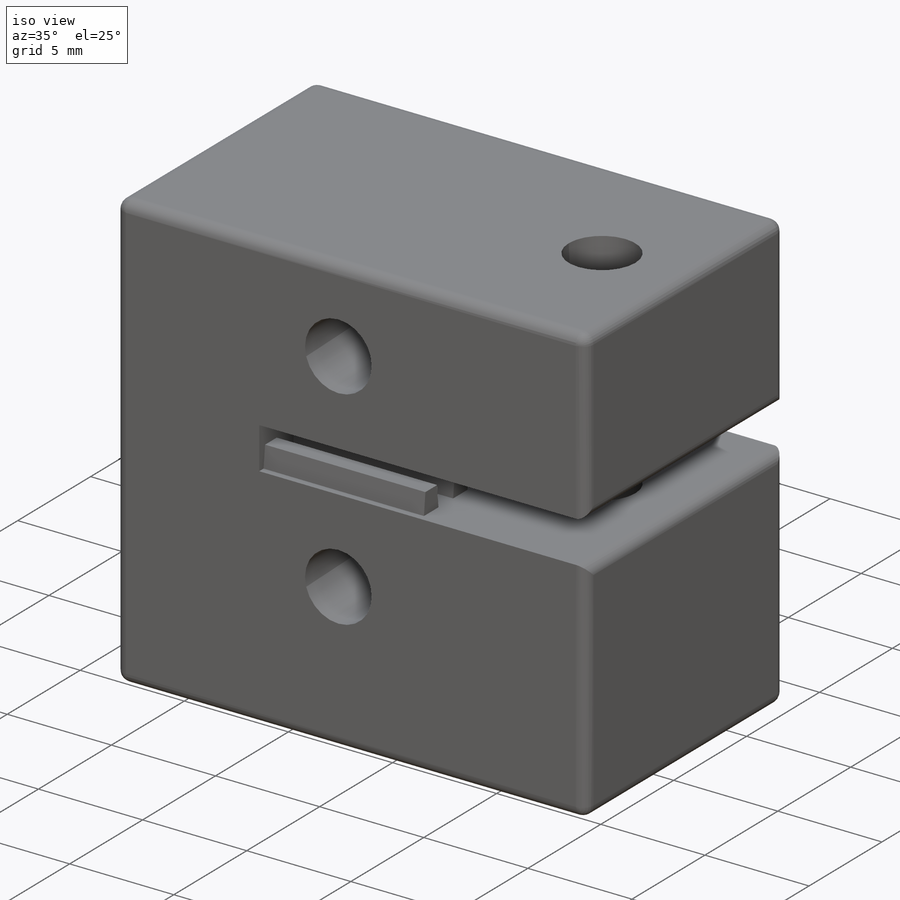
[diagram: iso view]
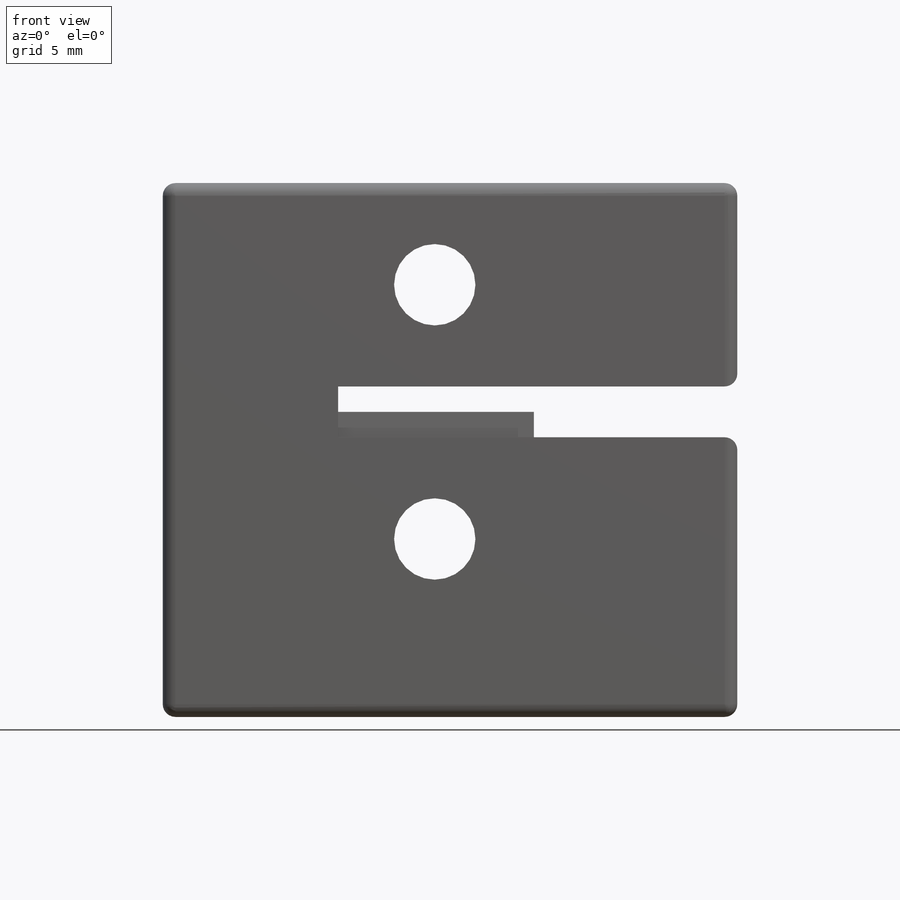
[diagram: front view]
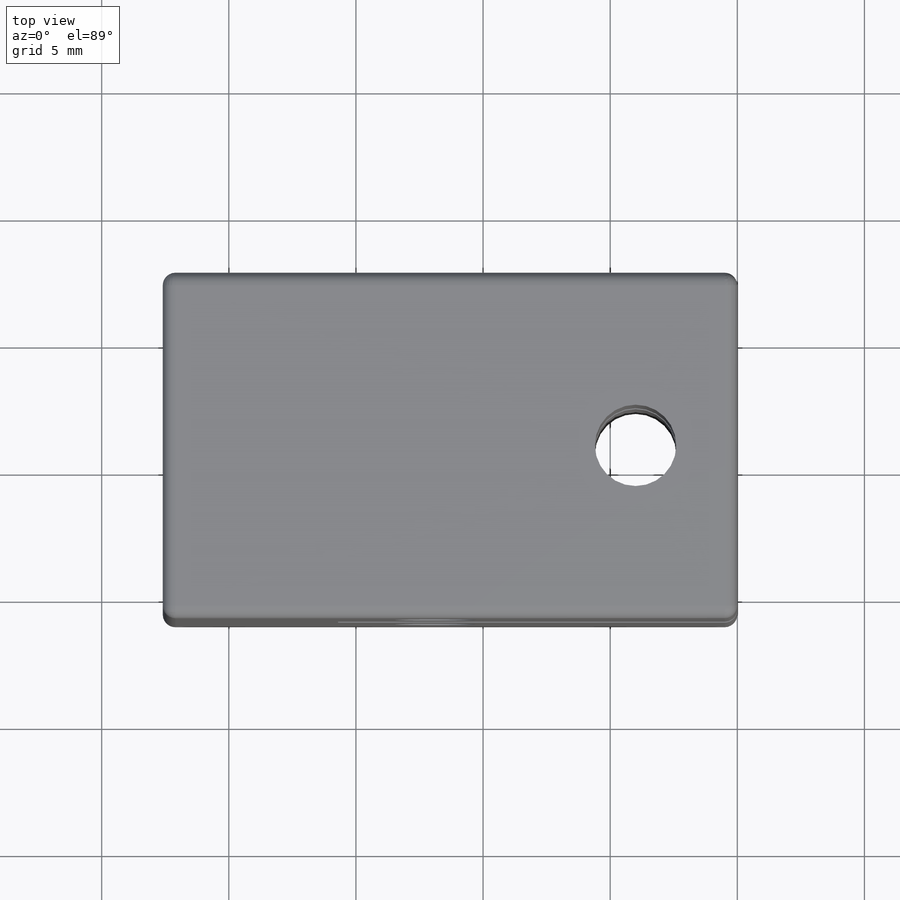
[diagram: top view]
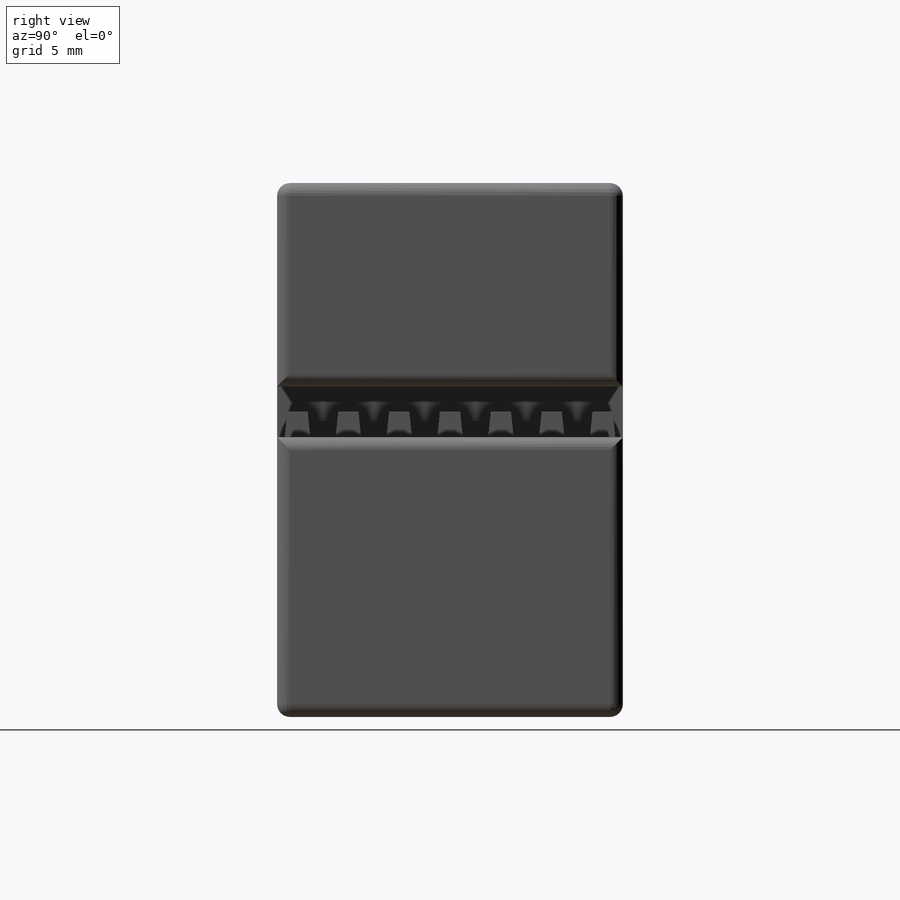
[diagram: right view]
SOLIDWORKS PART (.sldprt)
format: sldprt  version: not decoded by parser v0  size: 924,672 bytes
history: native  units: mm
features: sketch x11, cut_extrude x9, extrude x2, material x1, fillet x1 (+13 scaffold rows collapsed)
feature tree (37):
  scaffold x13  (default folders/planes/origin — collapsed)
  material  "ABS"
  sketch  "Sketch1"  dims[c1.D1=22.0mm c1.D8=22.0mm c1.D9=22.0mm c1.D12=7.0mm c1.D14=3.2mm c1.D15=3.2mm c1.D16=3.2mm c1.D17=11.4mm c1.D18=11.4mm c1.D2=23.0mm c1.D3=40.0mm c1.D4=11.85mm c1.D5=11.0mm c1.D6=8.0mm c1.D7=2.0mm c2.D8=34.0mm c2.D9=5.0mm c2.D10=19.0mm c2.D11=4.0mm c2.D13=15.7mm c2.D15=10.0mm c2.D16=11.9mm c2.D18=2.0mm]
  extrude  "Boss-Extrude1"  Depth=32mm
  sketch  "Sketch2"  dims[D1=15.0mm D2=1.0mm D3=16.5mm]
  cut_extrude  "Cut-Extrude1"  Depth=18.4mm
  sketch  "Sketch3"  dims[c1.D1=2.3mm c1.D2=8.0mm c1.D3=4.0mm c1.D4=19.6mm c1.D5=2.1mm c2.D4=6.3mm c2.D1=6.3mm c3.D4=2.0mm]
  cut_extrude  "Cut-Extrude2"  Depth=14.9mm
  sketch  "Sketch4"  dims[c1.D1=~5.528873mm c1.D2=~5.528873mm c1.D3=5.2mm c2.D1=8.7mm c2.D2=8.4mm c3.D1=6.3mm]
  cut_extrude  "Cut-Extrude3"  Depth=25mm
  sketch  "Sketch5"  dims[D1=12.0mm]
  cut_extrude  "Cut-Extrude4"  Depth=6mm
  sketch  "Sketch6"  dims[c1.D1=8.05mm c1.D2=8.05mm c1.D3=8.05mm c2.D2=11.8mm c2.D3=17.0mm]
  cut_extrude  "Cut-Extrude5"  Depth=17.4mm
  sketch  "Sketch7"  dims[D1=15.9mm]
  cut_extrude  "Cut-Extrude6"  Depth=11mm
  sketch  "Sketch8"  dims[D1=15.9mm]
  cut_extrude  "Cut-Extrude7"  Depth=11mm
  sketch  "Sketch9"  dims[D1=0.8mm D2=1.0mm D3=0.3mm D4=1.0mm D5=7.0]
  extrude  "Boss-Extrude2"  Depth=7.7mm
  sketch  "Sketch10"  dims[D1=3.2mm D2=4.0mm]
  cut_extrude  "Cut-Extrude8"  [1 undecoded]
  sketch  "Sketch11"
  cut_extrude  "Cut-Extrude9"  Depth=20mm
  fillet  "Fillet2"  Radius=0.5mm
decode coverage: 21 of 23 modeling features carry decoded parameters
note: ~ marks probable driven/reference dimensions
note: 1 parameter value undecoded
note: suppression state not decoded; provenance and decode notes live in map.json
